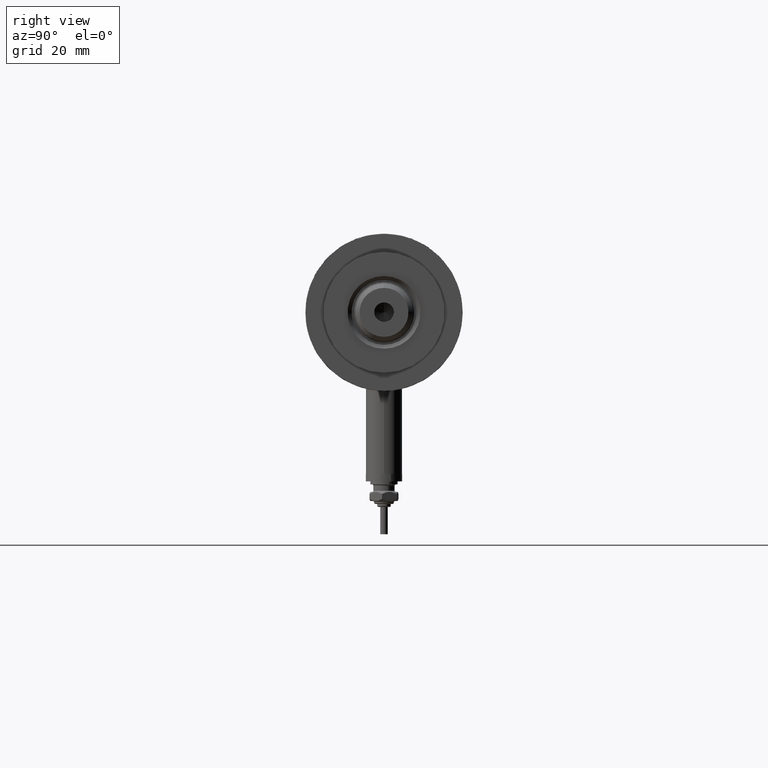
[diagram: clean part render]
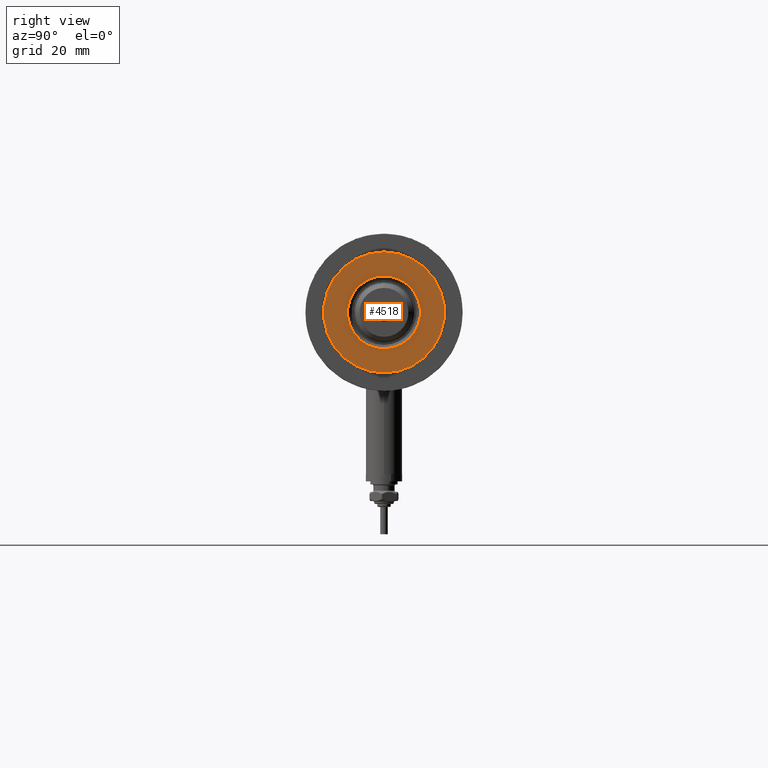
[diagram: same view with one face highlighted and labeled with its STEP entity id]
A machine part, right view. The second image highlights one B-rep face of the part: STEP entity #4518.
In plain terms, the highlighted planar face has unit normal (1, 0, -0).
Its self-contained STEP definition (entity closure, byte-faithful):
#154 = EDGE_CURVE ( 'NONE', #4388, #3687, #5713, .T. ) ;
#312 = AXIS2_PLACEMENT_3D ( 'NONE', #2355, #4739, #5804 ) ;
#389 = DIRECTION ( 'NONE',  ( -0.000000000000000000, -0.000000000000000000, -1.000000000000000000 ) ) ;
#429 = AXIS2_PLACEMENT_3D ( 'NONE', #2267, #1898, #4180 ) ;
#434 = FACE_OUTER_BOUND ( 'NONE', #1306, .T. ) ;
#706 = DIRECTION ( 'NONE',  ( 1.000000000000000000, 0.000000000000000000, 0.000000000000000000 ) ) ;
#1303 = CARTESIAN_POINT ( 'NONE',  ( 0.000000000000000000, 0.000000000000000000, 33.50000000000000000 ) ) ;
#1306 = EDGE_LOOP ( 'NONE', ( #2512, #5303 ) ) ;
#1789 = EDGE_CURVE ( 'NONE', #3687, #4388, #5831, .T. ) ;
#1898 = DIRECTION ( 'NONE',  ( 0.000000000000000000, 0.000000000000000000, 1.000000000000000000 ) ) ;
#2177 = CIRCLE ( 'NONE', #5747, 19.99999999999999645 ) ;
#2191 = DIRECTION ( 'NONE',  ( 0.000000000000000000, 0.000000000000000000, 1.000000000000000000 ) ) ;
#2267 = CARTESIAN_POINT ( 'NONE',  ( 0.000000000000000000, 0.000000000000000000, 33.50000000000000000 ) ) ;
#2348 = DIRECTION ( 'NONE',  ( 1.000000000000000000, 0.000000000000000000, 0.000000000000000000 ) ) ;
#2355 = CARTESIAN_POINT ( 'NONE',  ( 0.000000000000000000, 0.000000000000000000, 33.50000000000000000 ) ) ;
#2436 = EDGE_LOOP ( 'NONE', ( #2874, #4469 ) ) ;
#2512 = ORIENTED_EDGE ( 'NONE', *, *, #2776, .T. ) ;
#2549 = CARTESIAN_POINT ( 'NONE',  ( -19.99999999999999645, 0.000000000000000000, 33.50000000000000000 ) ) ;
#2577 = VERTEX_POINT ( 'NONE', #4377 ) ;
#2776 = EDGE_CURVE ( 'NONE', #3745, #2577, #4281, .T. ) ;
#2803 = PLANE ( 'NONE',  #429 ) ;
#2874 = ORIENTED_EDGE ( 'NONE', *, *, #1789, .T. ) ;
#2952 = AXIS2_PLACEMENT_3D ( 'NONE', #5829, #389, #2348 ) ;
#3122 = CARTESIAN_POINT ( 'NONE',  ( 12.05000000000000426, 0.000000000000000000, 33.50000000000000000 ) ) ;
#3175 = DIRECTION ( 'NONE',  ( 1.000000000000000000, 0.000000000000000000, 0.000000000000000000 ) ) ;
#3183 = CARTESIAN_POINT ( 'NONE',  ( -12.05000000000000426, 1.475699392972560823E-15, 33.50000000000000000 ) ) ;
#3687 = VERTEX_POINT ( 'NONE', #3122 ) ;
#3745 = VERTEX_POINT ( 'NONE', #2549 ) ;
#4180 = DIRECTION ( 'NONE',  ( 1.000000000000000000, 0.000000000000000000, -0.000000000000000000 ) ) ;
#4281 = CIRCLE ( 'NONE', #5016, 19.99999999999999645 ) ;
#4377 = CARTESIAN_POINT ( 'NONE',  ( 19.99999999999999645, 2.449293598294706119E-15, 33.50000000000000000 ) ) ;
#4388 = VERTEX_POINT ( 'NONE', #3183 ) ;
#4469 = ORIENTED_EDGE ( 'NONE', *, *, #154, .T. ) ;
#4518 = ADVANCED_FACE ( 'NONE', ( #5225, #434 ), #2803, .T. ) ;
#4739 = DIRECTION ( 'NONE',  ( -0.000000000000000000, -0.000000000000000000, -1.000000000000000000 ) ) ;
#5016 = AXIS2_PLACEMENT_3D ( 'NONE', #5609, #5546, #3175 ) ;
#5225 = FACE_BOUND ( 'NONE', #2436, .T. ) ;
#5239 = EDGE_CURVE ( 'NONE', #2577, #3745, #2177, .T. ) ;
#5303 = ORIENTED_EDGE ( 'NONE', *, *, #5239, .T. ) ;
#5546 = DIRECTION ( 'NONE',  ( 0.000000000000000000, 0.000000000000000000, 1.000000000000000000 ) ) ;
#5609 = CARTESIAN_POINT ( 'NONE',  ( 0.000000000000000000, 0.000000000000000000, 33.50000000000000000 ) ) ;
#5713 = CIRCLE ( 'NONE', #2952, 12.05000000000000426 ) ;
#5747 = AXIS2_PLACEMENT_3D ( 'NONE', #1303, #2191, #706 ) ;
#5804 = DIRECTION ( 'NONE',  ( 1.000000000000000000, 0.000000000000000000, 0.000000000000000000 ) ) ;
#5829 = CARTESIAN_POINT ( 'NONE',  ( 0.000000000000000000, 0.000000000000000000, 33.50000000000000000 ) ) ;
#5831 = CIRCLE ( 'NONE', #312, 12.05000000000000426 ) ;